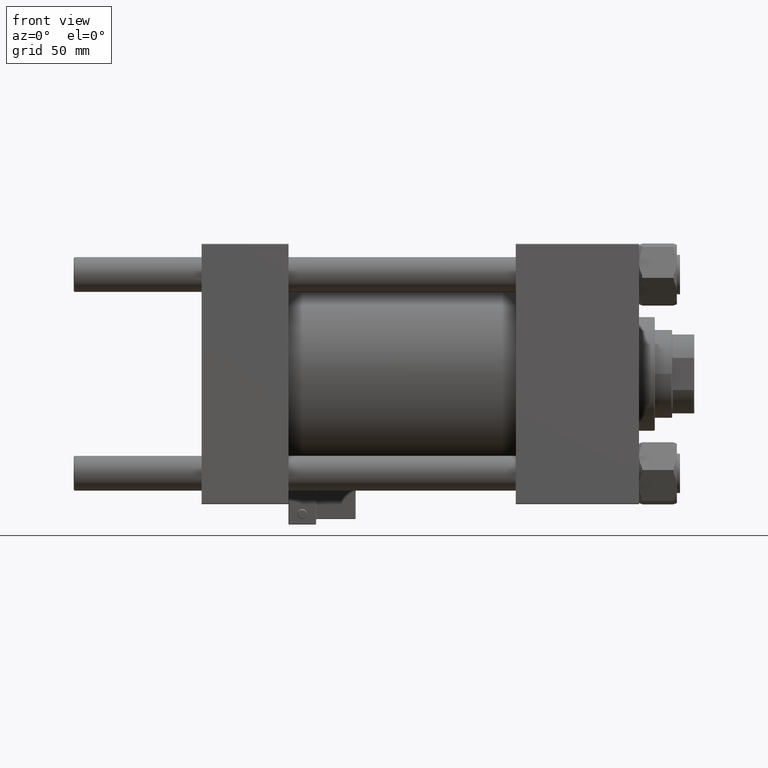
[diagram: clean part render]
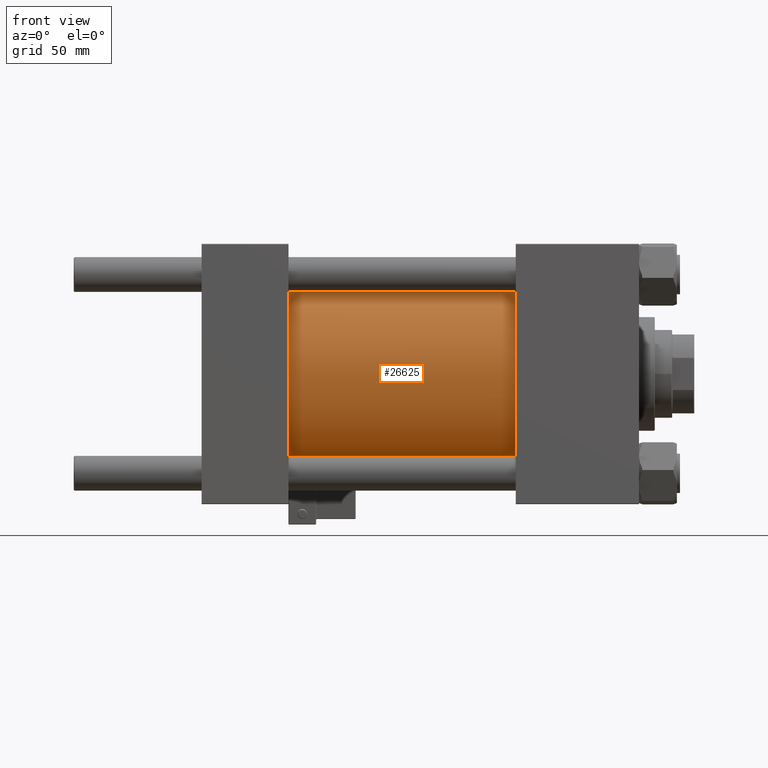
[diagram: same view with one face highlighted and labeled with its STEP entity id]
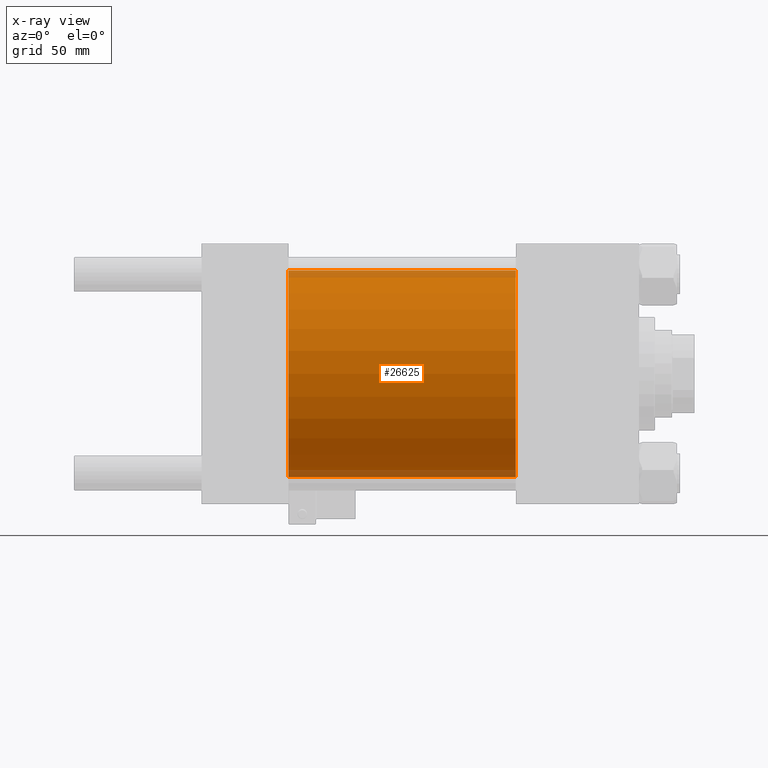
[diagram: x-ray of the same camera — body ghosted, the highlighted face saturated]
A machine part, front view. The second image highlights one B-rep face of the part: STEP entity #26625.
The next image is the same camera in x-ray: the body ghosted, the highlighted face saturated — about 7% of this face is hidden behind the body in this view.
In plain terms, the highlighted cylindrical surface (partial cylindrical patch) has radius 65.5 mm, axis along (-1, -0, -0).
Its self-contained STEP definition (entity closure, byte-faithful):
#619 = CARTESIAN_POINT ( 'NONE',  ( 198.9999999999999716, 0.000000000000000000, 65.50000000000001421 ) ) ;
#1391 = DIRECTION ( 'NONE',  ( 0.000000000000000000, 0.000000000000000000, -1.000000000000000000 ) ) ;
#1894 = CARTESIAN_POINT ( 'NONE',  ( 198.9999999999999716, 0.000000000000000000, 0.000000000000000000 ) ) ;
#4295 = VERTEX_POINT ( 'NONE', #619 ) ;
#5143 = CIRCLE ( 'NONE', #34861, 65.50000000000001421 ) ;
#9948 = LINE ( 'NONE', #38151, #12964 ) ;
#10301 = CARTESIAN_POINT ( 'NONE',  ( 198.9999999999999716, 8.021436534415166404E-15, -65.50000000000001421 ) ) ;
#12964 = VECTOR ( 'NONE', #26182, 1000.000000000000000 ) ;
#14330 = CARTESIAN_POINT ( 'NONE',  ( 198.9999999999999716, 0.000000000000000000, 0.000000000000000000 ) ) ;
#17811 = FACE_OUTER_BOUND ( 'NONE', #25778, .T. ) ;
#19175 = AXIS2_PLACEMENT_3D ( 'NONE', #1894, #30117, #1391 ) ;
#22440 = DIRECTION ( 'NONE',  ( -1.000000000000000000, -0.000000000000000000, -0.000000000000000000 ) ) ;
#25778 = EDGE_LOOP ( 'NONE', ( #49721, #30706, #50722, #26472 ) ) ;
#26182 = DIRECTION ( 'NONE',  ( -1.000000000000000000, -0.000000000000000000, -0.000000000000000000 ) ) ;
#26472 = ORIENTED_EDGE ( 'NONE', *, *, #28071, .T. ) ;
#26625 = ADVANCED_FACE ( 'NONE', ( #17811 ), #50774, .T. ) ;
#28071 = EDGE_CURVE ( 'NONE', #41447, #50842, #5143, .T. ) ;
#28630 = DIRECTION ( 'NONE',  ( 0.000000000000000000, 0.000000000000000000, 1.000000000000000000 ) ) ;
#29818 = CARTESIAN_POINT ( 'NONE',  ( 54.99999999999999289, 8.021436534415166404E-15, -65.50000000000001421 ) ) ;
#30117 = DIRECTION ( 'NONE',  ( 1.000000000000000000, 0.000000000000000000, 0.000000000000000000 ) ) ;
#30546 = DIRECTION ( 'NONE',  ( -1.000000000000000000, -0.000000000000000000, -0.000000000000000000 ) ) ;
#30706 = ORIENTED_EDGE ( 'NONE', *, *, #49711, .F. ) ;
#33765 = DIRECTION ( 'NONE',  ( 0.000000000000000000, 0.000000000000000000, 1.000000000000000000 ) ) ;
#34655 = EDGE_CURVE ( 'NONE', #4295, #41447, #48170, .T. ) ;
#34861 = AXIS2_PLACEMENT_3D ( 'NONE', #41119, #48832, #28630 ) ;
#35585 = EDGE_CURVE ( 'NONE', #50997, #50842, #9948, .T. ) ;
#38151 = CARTESIAN_POINT ( 'NONE',  ( 198.9999999999999716, 8.021436534415166404E-15, -65.50000000000001421 ) ) ;
#40076 = VECTOR ( 'NONE', #22440, 1000.000000000000000 ) ;
#41119 = CARTESIAN_POINT ( 'NONE',  ( 54.99999999999999289, 0.000000000000000000, 0.000000000000000000 ) ) ;
#41447 = VERTEX_POINT ( 'NONE', #51267 ) ;
#42111 = CIRCLE ( 'NONE', #19175, 65.50000000000001421 ) ;
#43341 = AXIS2_PLACEMENT_3D ( 'NONE', #14330, #30546, #33765 ) ;
#44445 = CARTESIAN_POINT ( 'NONE',  ( 198.9999999999999716, 0.000000000000000000, 65.50000000000001421 ) ) ;
#48170 = LINE ( 'NONE', #44445, #40076 ) ;
#48832 = DIRECTION ( 'NONE',  ( 1.000000000000000000, -0.000000000000000000, -0.000000000000000000 ) ) ;
#49711 = EDGE_CURVE ( 'NONE', #4295, #50997, #42111, .T. ) ;
#49721 = ORIENTED_EDGE ( 'NONE', *, *, #35585, .F. ) ;
#50722 = ORIENTED_EDGE ( 'NONE', *, *, #34655, .T. ) ;
#50774 = CYLINDRICAL_SURFACE ( 'NONE', #43341, 65.50000000000001421 ) ;
#50842 = VERTEX_POINT ( 'NONE', #29818 ) ;
#50997 = VERTEX_POINT ( 'NONE', #10301 ) ;
#51267 = CARTESIAN_POINT ( 'NONE',  ( 54.99999999999999289, 0.000000000000000000, 65.50000000000001421 ) ) ;